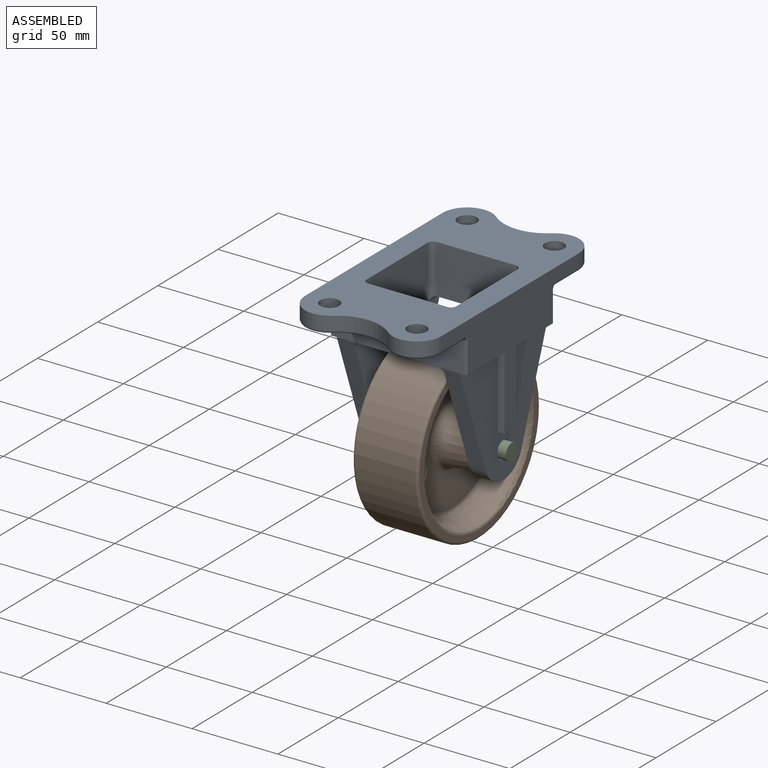
[diagram: assembled view]
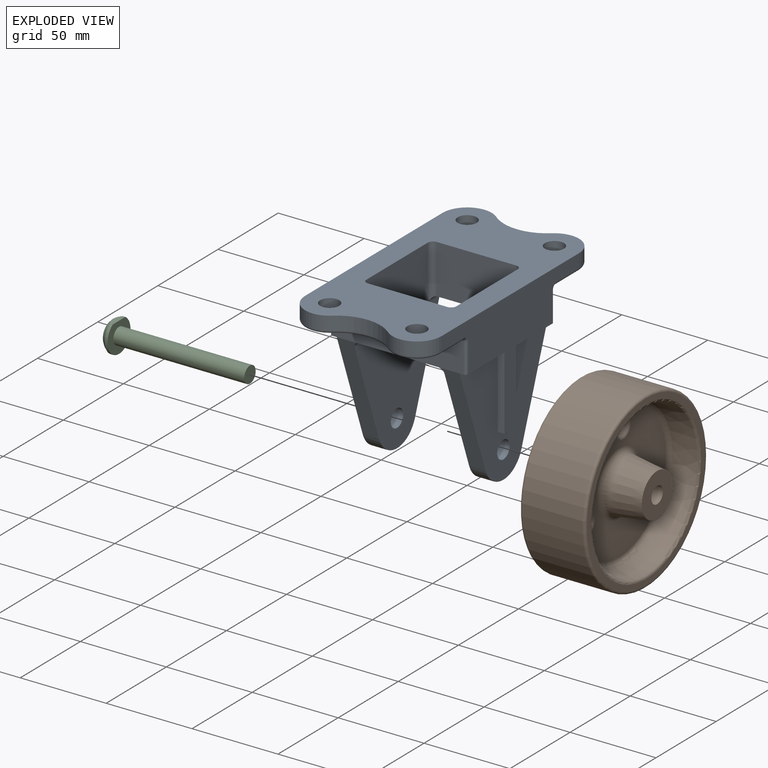
[diagram: exploded view]
GUIDED TOUR — MATED ASSEMBLY (Onshape document 51a0e3ab32a8b7ddf1b25b2f, AutoMate assembly 51a0e3ab32a8b7ddf1b25b2f_3fb91da41165e3255a76e7f5_c659cc7ed26e796af686cd4d_default)

This assembly has 3 components, labeled P0..P2 below (a component is one placed occurrence of a part; the same part can appear more than once), held together by 3 mates. A mate is a constraint between two components; its type names the relative motion it leaves free:
  CYLINDRICAL — leaves both rotation about and translation along the listed axis free,
  PLANAR — leaves sliding in the plane through the listed point (normal = the listed direction) and rotation about that normal free.
Axis/direction vectors are unit vectors and 'through' points are millimeter coordinates, both in the assembly's world frame.

MATES
  1. CYLINDRICAL "Cylindrical 2": P0 <-> P2, axis (1.000, 0.000, 0.000) through (7.39, -151.70, 80.08) mm
  2. CYLINDRICAL "Cylindrical 1": P1 <-> P0, axis (-1.000, 0.000, 0.000) through (-0.46, -151.70, 80.08) mm
  3. PLANAR "Planar 1": P0 <-> P2, direction (-1.000, 0.000, 0.000) through (-64.05, -151.70, 105.78) mm

ASSEMBLY ORDER
  1. P0 — the base component [order verified]
  2. P1 [order verified]
  3. P2 [order verified]
Order-tag legend:
  [order verified] — this step's position reverses a verified removal order: the component was checked to insert without passing through the ones already placed.

Of the 3 components, 1 carries the full construction recipe — the FeatureScript program that regenerates the part's solid from scratch; the rest are supplied as boundary geometry only.
Each toured component is shown spotlighted twice — in the assembled view, then in the exploded view, where a leader line traces a displaced component back to its assembled socket (saturated green if recipe-attached, orange if geometry-only; every other component desaturated gray) — followed by its recipe or geometry summary and the mates that hold it.
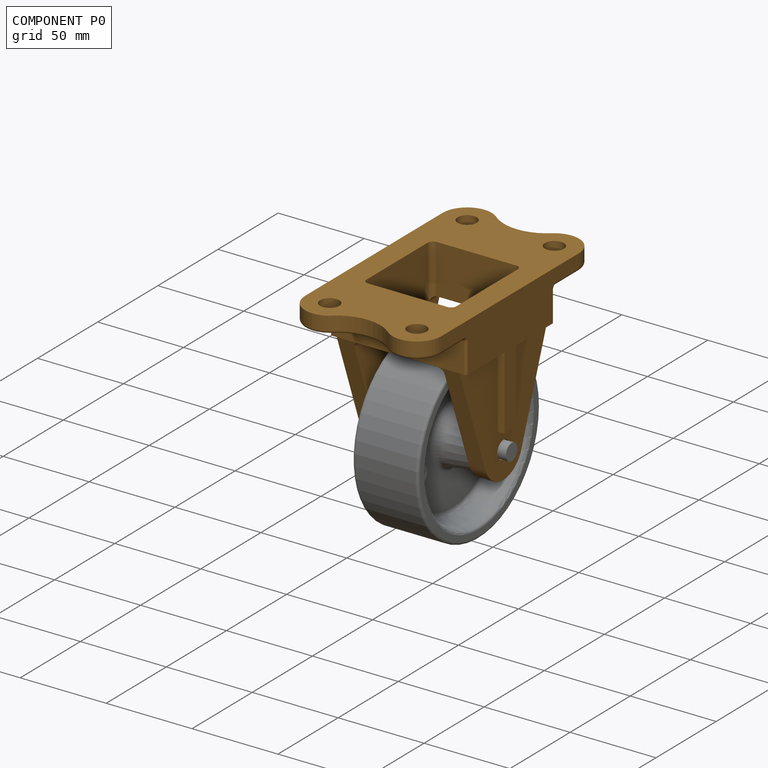
[diagram: component P0 — assembled]
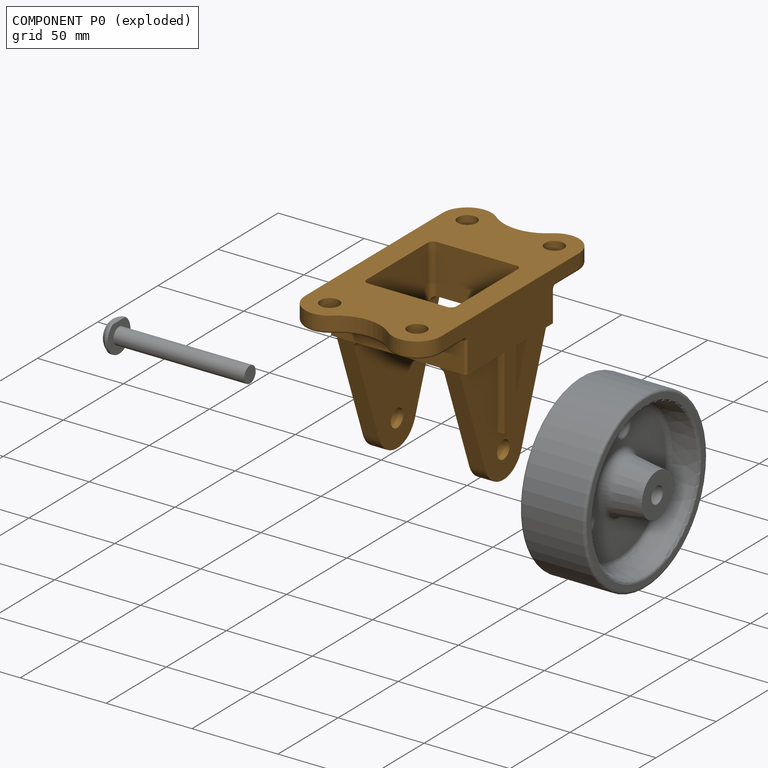
[diagram: component P0 — exploded]
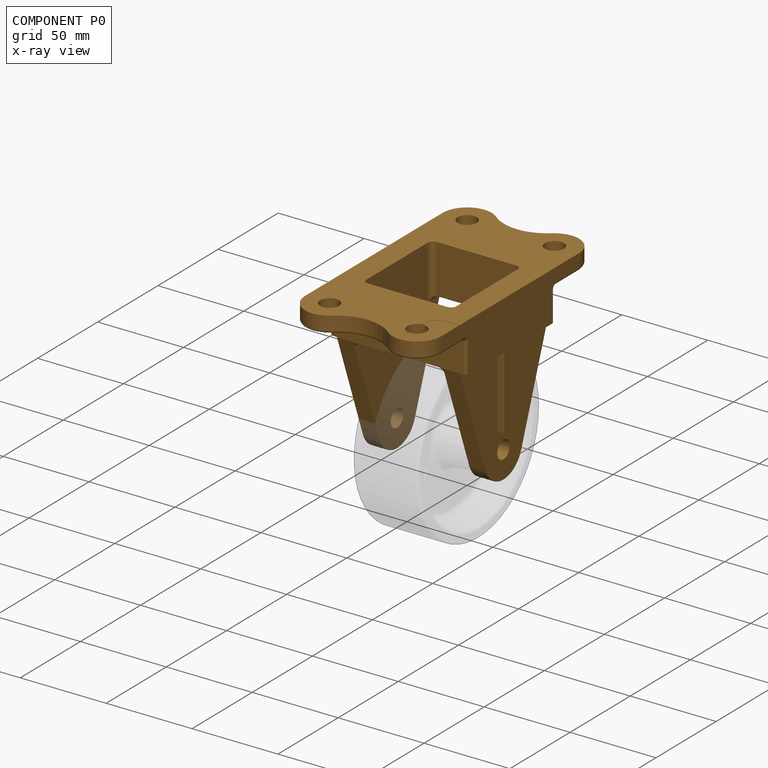
[diagram: component P0 — x-ray view]
COMPONENT P0 — geometry summary (no construction recipe available for this part):
  bounding box: 145.2 x 98.4 x 81.7 mm
  B-rep topology: 1 solid, 71 faces, 364 edges
  volume: 187099 mm^3 (16% of its bounding box)
  symmetry: mirror-symmetric across its y mid-plane
Held by: CYLINDRICAL mate "Cylindrical 2" to P2; CYLINDRICAL mate "Cylindrical 1" to P1; PLANAR mate "Planar 1" to P2.
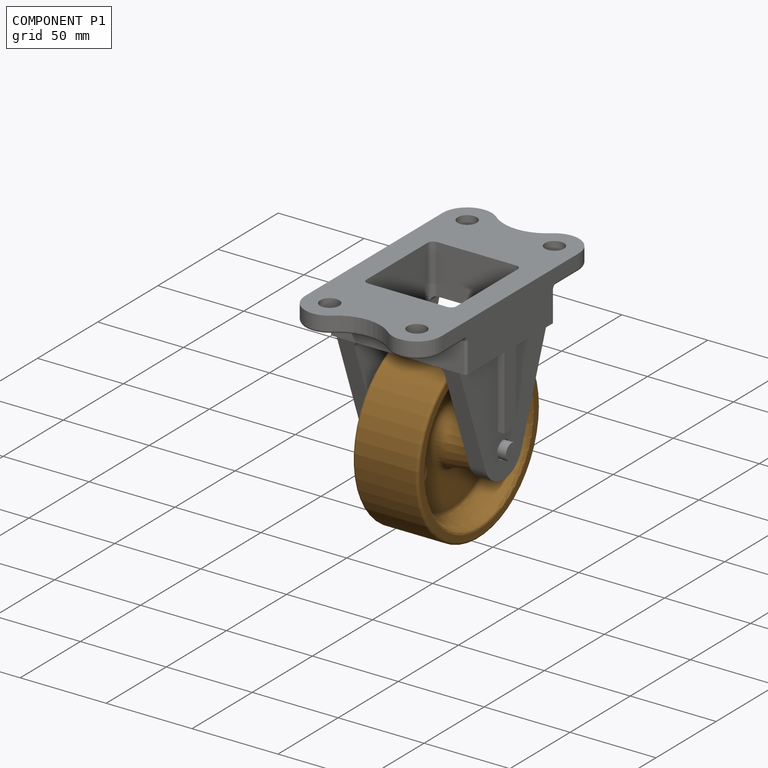
[diagram: component P1 — assembled]
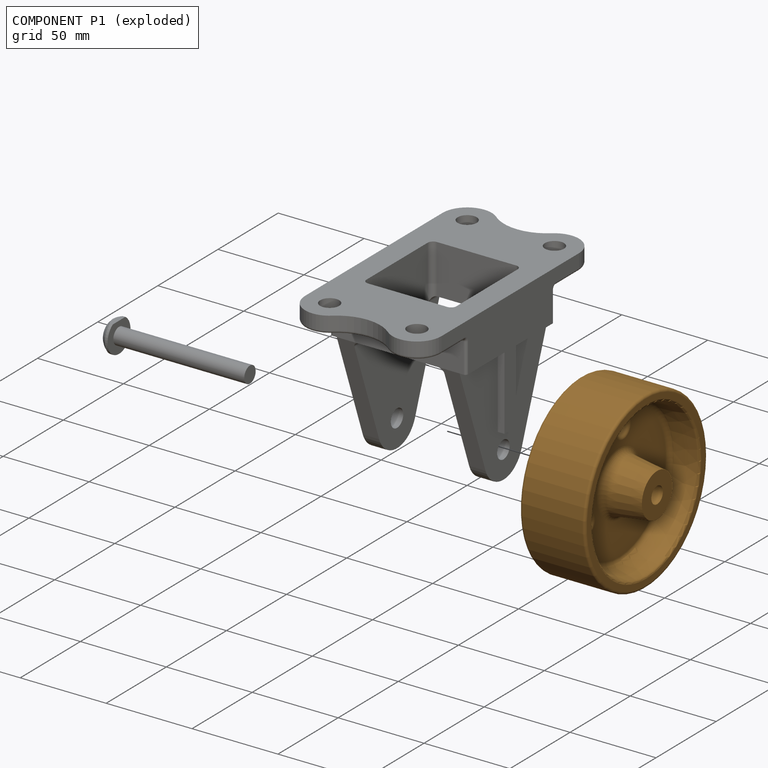
[diagram: component P1 — exploded]
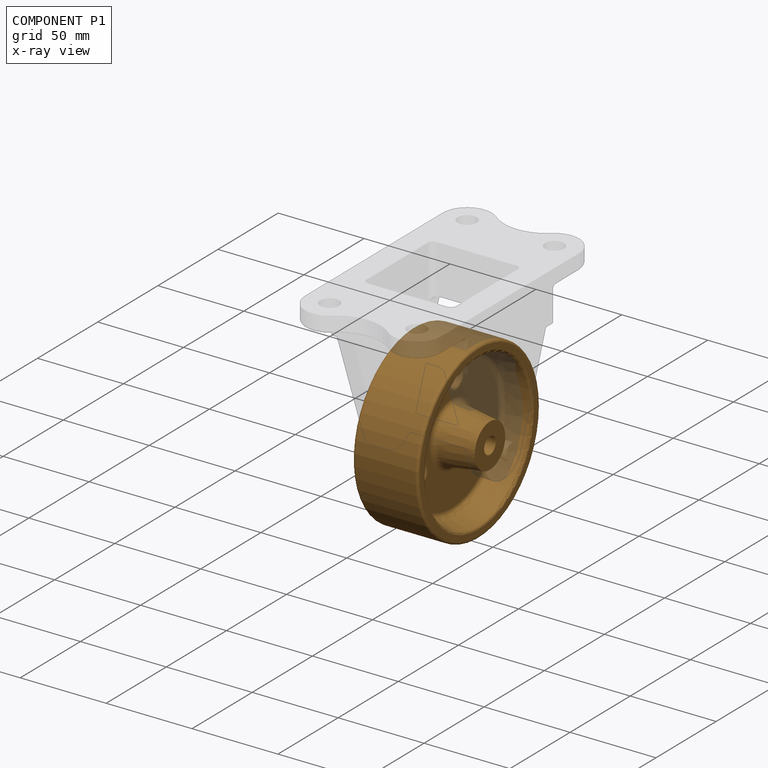
[diagram: component P1 — x-ray view]
COMPONENT P1 — geometry summary (no construction recipe available for this part):
  bounding box: 110.0 x 110.0 x 50.8 mm
  B-rep topology: 1 solid, 29 faces, 116 edges
  volume: 149472 mm^3 (24% of its bounding box)
  symmetry: 2-fold rotationally symmetric about the x axis; 3-fold rotationally symmetric about the z axis; mirror-symmetric across its y mid-plane, z mid-plane
Held by: CYLINDRICAL mate "Cylindrical 1" to P0.
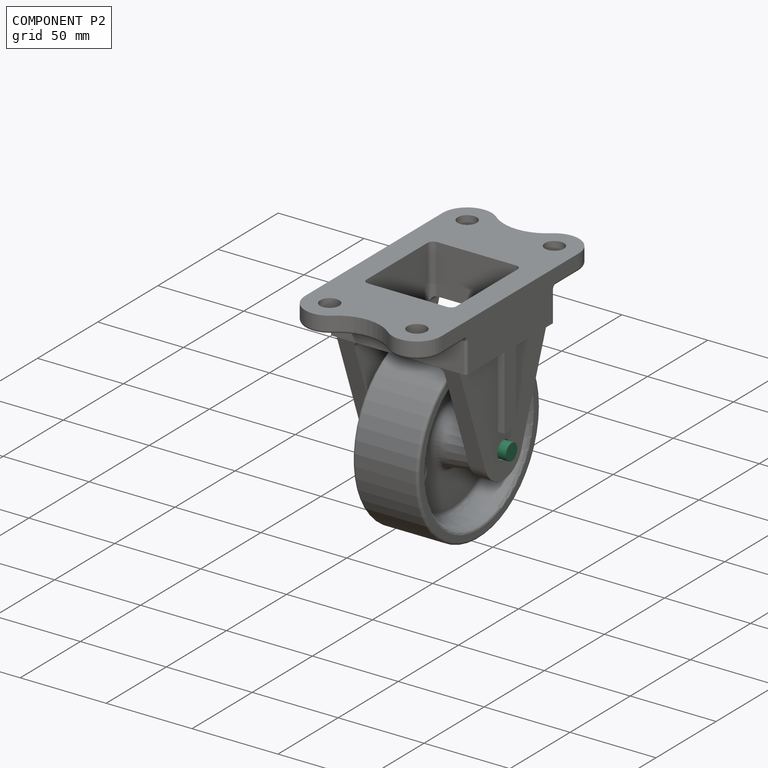
[diagram: component P2 — assembled]
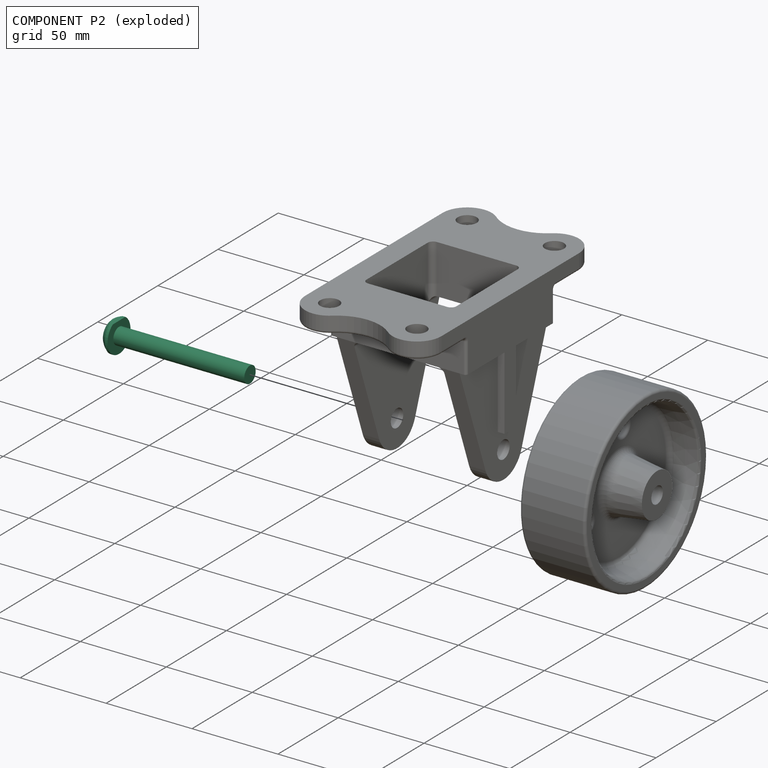
[diagram: component P2 — exploded]
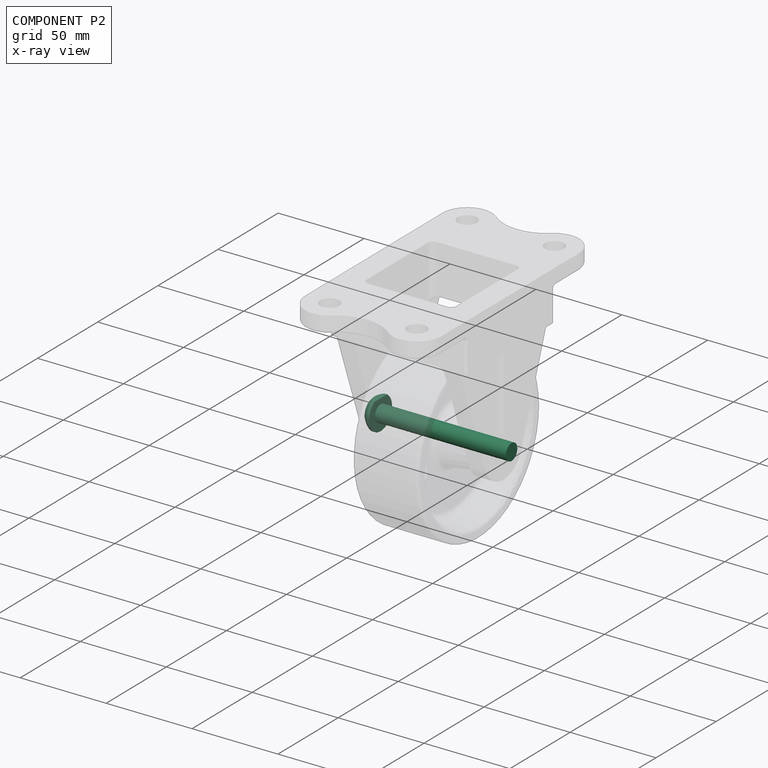
[diagram: component P2 — x-ray view]
COMPONENT P2 — recipe-attached (CADFS 00244403, mesh-verified: the recipe's output STEP matches this component's geometry to below the mesh-comparison resolution (tessellation chordal tolerance ~0.127 mm)).
Held by: CYLINDRICAL mate "Cylindrical 2" to P0; PLANAR mate "Planar 1" to P0.
Construction recipe (FeatureScript — the CAD program that rebuilds this solid; sketch coordinates are in the units given by the * unit suffixes, e.g. mm):

FeatureScript 1511;
import(path : "onshape/std/geometry.fs", version : "1511.0");
import(path : "onshape/std/common.fs", version : "1511.0");
const mm = millimeter;
const VERTEX = EntityType.VERTEX;
const EDGE = EntityType.EDGE;
const FACE = EntityType.FACE;
const BODY = EntityType.BODY;
function v(x, y){return vector(x, y);}
function OD(order){return orderDisambiguation(order);}
function OSD(set){return originalSetDisambiguation(set);}
function TD(topology){return topologyDisambiguation(topology);}
function TDD(query){return trueDependencyDisambiguation(query);}
function sQuery(a, b, c) {return sketchEntityQuery(a, b, c);}

annotation { "Feature Type Name" : "Feature", "Feature Type Description" : "" }
export const myFeature = defineFeature(function(context is Context, id is Id, definition is map)
    precondition{}
    {
        {
            var Q0;
            Q0=qCreatedBy(makeId("Right.planeOp"),FACE);
            var sketch = newSketch(context, id + "F0", { "sketchPlane" : qUnion([Q0])});
            skLineSegment(sketch, "E0", {"start": v(0, 0) * mm, "end": v(-44.84, 0) * mm});
            skLineSegment(sketch, "E1", {"start": v(-50.56, -9.53) * mm, "end": v(-48.97, -9.53) * mm});
            skLineSegment(sketch, "E2", {"start": v(-48.97, -9.52) * mm, "end": v(-48.97, 0) * mm});
            skLineSegment(sketch, "E3", {"start": v(-48.97, 0) * mm, "end": v(-48.97, -4.76) * mm});
            skLineSegment(sketch, "E4", {"start": v(-48.97, -4.76) * mm, "end": v(27.23, -4.76) * mm});
            skLineSegment(sketch, "E5", {"start": v(27.23, -4.76) * mm, "end": v(27.23, 0) * mm});
            skLineSegment(sketch, "E6", {"start": v(27.23, 0) * mm, "end": v(-48.97, 0) * mm});
            skLineSegment(sketch, "E7", {"start": v(-48.97, 0) * mm, "end": v(-53.74, 0) * mm});
            skLineSegment(sketch, "E8", {"start": v(-53.74, 0) * mm, "end": v(-53.74, -6.66) * mm});
            skArc(sketch, "E9.trimOffspring", {"start": v(-53.74, -6.66) * mm, "mid": v(-52.29, -8.24) * mm, "end": v(-50.56, -9.52) * mm});
            skSolve(sketch);
        }
        {
            var Q0;
            Q0 = qSketchRegion(id + "F0", true);
            var Q1;
            Q1=sQuery(id+"F0.wireOp",EDGE,"E6");
            revolve(context, id + "F1", {"entities" : qUnion([Q0]), "axis" : qUnion([Q1]), "revolveType" : RevolveType.FULL});
        }
        {
            var Q0;
            Q0=makeQuery(id+"F1.opRevolve","SWEPT_FACE",FACE,{"disambiguationData":[OSD([sQuery(id+"F0.wireOp",EDGE,"E2")])]});
            var sketch = newSketch(context, id + "F2", { "sketchPlane" : qUnion([Q0])});
            skLineSegment(sketch, "E10", {"start": v(0, 0) * mm, "end": v(0, 7.94) * mm});
            skLineSegment(sketch, "E11", {"start": v(0, 7.94) * mm, "end": v(5.27, 7.94) * mm});
            skLineSegment(sketch, "E12", {"start": v(5.27, 7.94) * mm, "end": v(-5.27, 7.94) * mm});
            skSolve(sketch);
        }
        {
            var Q0;
            {var subQ0=sQuery(id+"F2.wireOp",EDGE,"E12");var subQ1=makeQuery(id+"F2.imprint","IMPRINT",VERTEX,{"derivedFrom":subQ0});Q0=makeQuery(id+"F2.imprint","IMPRINT",FACE,{"disambiguationData":[TD([[makeQuery(id+"F2.imprint","IMPRINT",EDGE,{"disambiguationData":[TD([[subQ1,1.0]])],"derivedFrom":subQ0}),-1.0]])]});}
            extrude(context, id + "F3", {"entities" : qUnion([Q0]), "operationType" : NewBodyOperationType.REMOVE, "endBound" : BoundingType.THROUGH_ALL, "oppositeDirection" : true, "depth" : 25.4 * mm});
        }
    });
PROVENANCE & LICENSES
Assembly (occurrences, transforms, mates, per-part STEP geometry): AutoMate dataset, Zenodo record 7776208, CC0.
Construction recipes: CADFS (HuggingFace VladPyatov/CADFS, CC-BY-4.0, layered over the ABC dataset), FeatureScript reconstruction programs keyed by ABC model id.
Join: ABC meta listings map ABC model id -> Onshape documentId; within a shared document, parts are matched by geometric signature (bounding-box dims + volume at 0.1% relative tolerance, exact B-rep face/solid counts).
Verification: 1 of this assembly's 3 components carries a recipe attachment, and every attachment is mesh-verified: the CADFS STEP and the AutoMate member STEP were compared as meshes in their shared local frame (symmetric sampled-point-to-mesh distance); worst across the 1 attachment: below the mesh-comparison resolution (tessellation chordal tolerance ~0.127 mm) on a 85 mm part.
Renders: orthographic iso camera (az 35 / el 25); the floor grid conveys scale (grid pitch printed in each image; no ruler). In the exploded view each component is displaced by its stored offset vector: the offsets alone carry the explosion direction (mate normal/axis signs are not orientation cues and do not encode it), and separation distances are assigned per mate-chain, not proportionally to assembly-order depth.
